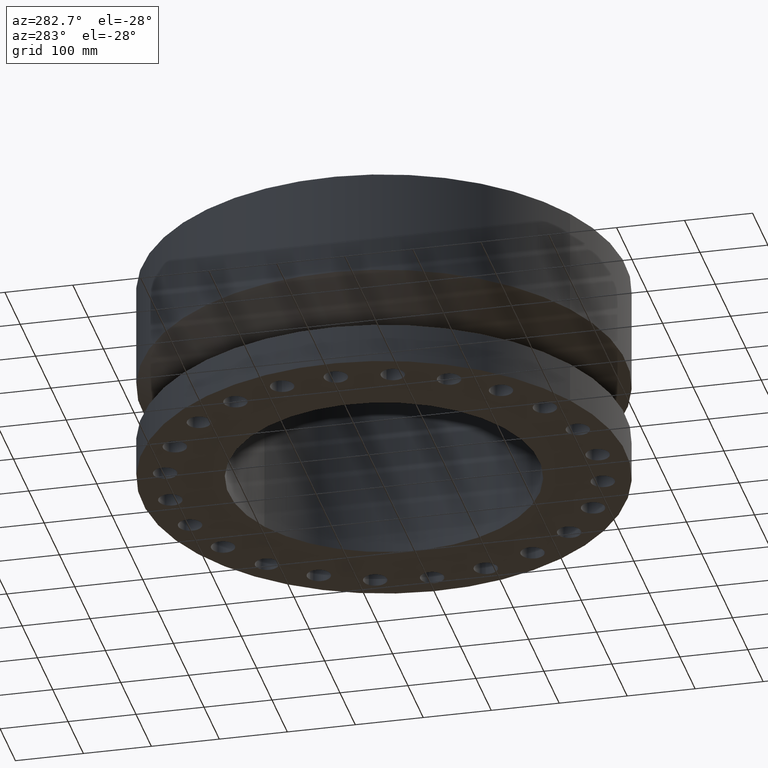
[diagram: clean part render]
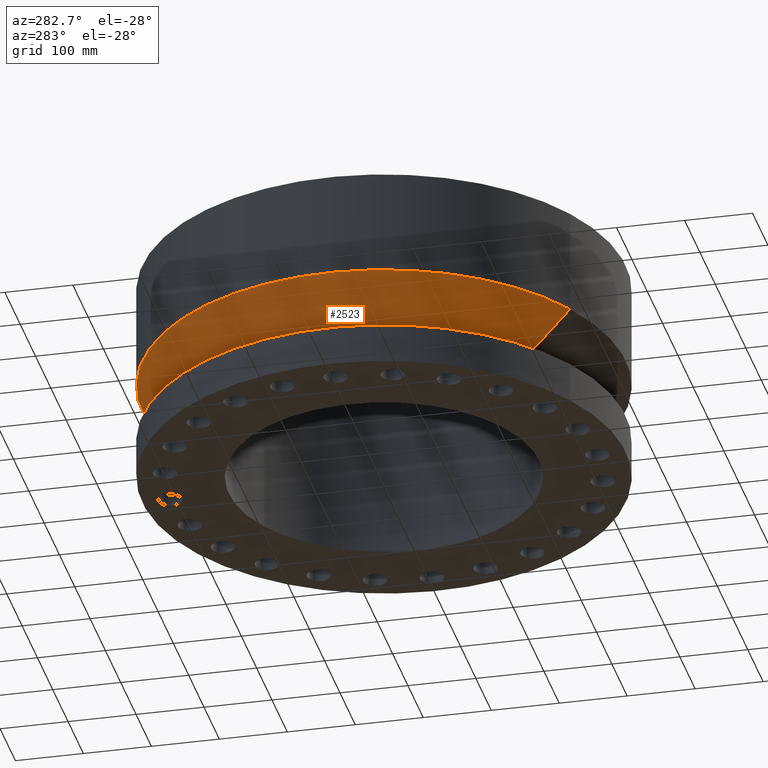
[diagram: same view with one face highlighted and labeled with its STEP entity id]
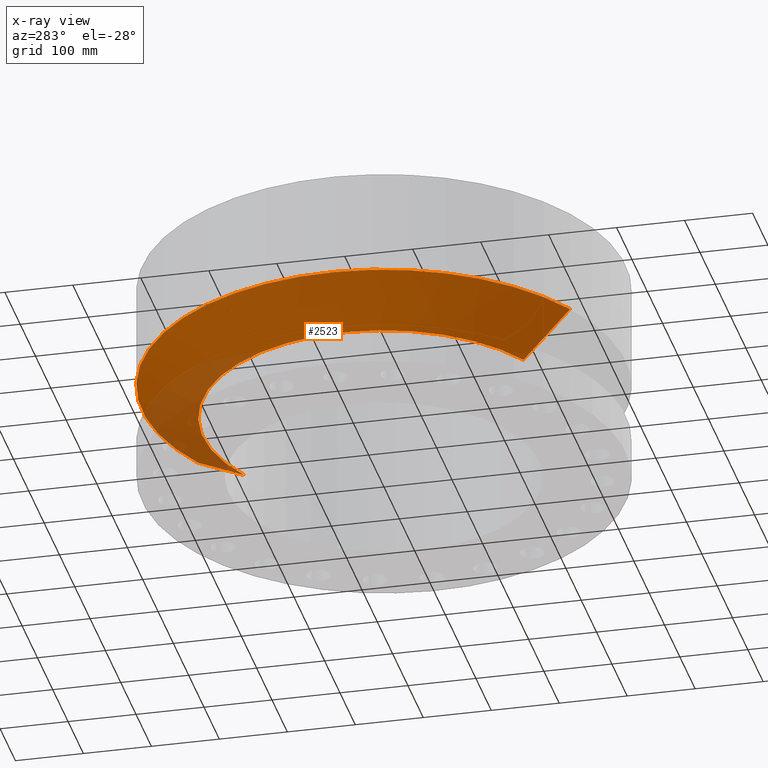
[diagram: x-ray of the same camera — body ghosted, the highlighted face saturated]
A machine part, auxiliary view. The second image highlights one B-rep face of the part: STEP entity #2523.
The next image is the same camera in x-ray: the body ghosted, the highlighted face saturated — about 16% of this face is hidden behind the body in this view.
In plain terms, the highlighted conical surface has half-angle 60 deg.
Its self-contained STEP definition (entity closure, byte-faithful):
#1958=AXIS2_PLACEMENT_3D('Circle Axis2P3D',#1956,#1957,$) ;
#2484=AXIS2_PLACEMENT_3D('Cone Axis2P3D',#2481,#2482,#2483) ;
#2514=AXIS2_PLACEMENT_3D('Circle Axis2P3D',#2512,#2513,$) ;
#1934=CARTESIAN_POINT('Vertex',(5.03396815536,9.21461689989,3.81750000002)) ;
#1941=CARTESIAN_POINT('Vertex',(-5.03396815536,-9.21461689989,3.81750000002)) ;
#1956=CARTESIAN_POINT('Axis2P3D Location',(0.,0.,3.81750000002)) ;
#2481=CARTESIAN_POINT('Axis2P3D Location',(0.,0.,3.81750000002)) ;
#2486=CARTESIAN_POINT('Line Origine',(5.87296284792,10.7503863832,4.8278629711)) ;
#2490=CARTESIAN_POINT('Vertex',(6.71195754049,12.2861558665,5.83822594219)) ;
#2497=CARTESIAN_POINT('Vertex',(-6.71195754049,-12.2861558665,5.83822594219)) ;
#2500=CARTESIAN_POINT('Line Origine',(-5.87296284792,-10.7503863832,4.8278629711)) ;
#2512=CARTESIAN_POINT('Axis2P3D Location',(0.,0.,5.83822594219)) ;
#1957=DIRECTION('Axis2P3D Direction',(0.,0.,-0.0393700787402)) ;
#2482=DIRECTION('Axis2P3D Direction',(-0.,-0.,0.0393700787402)) ;
#2483=DIRECTION('Axis2P3D XDirection',(0.0188750212049,0.0345504945626,0.)) ;
#2487=DIRECTION('Vector Direction',(0.0163462478604,0.0299216060045,0.0196850393701)) ;
#2501=DIRECTION('Vector Direction',(-0.0163462478604,-0.0299216060045,0.0196850393701)) ;
#2513=DIRECTION('Axis2P3D Direction',(-0.,0.,0.0393700787402)) ;
#2488=VECTOR('Line Direction',#2487,0.0393700787402) ;
#2502=VECTOR('Line Direction',#2501,0.0393700787402) ;
#2518=ORIENTED_EDGE('',*,*,#1960,.F.) ;
#2519=ORIENTED_EDGE('',*,*,#2504,.T.) ;
#2520=ORIENTED_EDGE('',*,*,#2516,.T.) ;
#2521=ORIENTED_EDGE('',*,*,#2492,.F.) ;
#2523=ADVANCED_FACE('PartBody',(#2522),#2485,.T.) ;
#1959=CIRCLE('generated circle',#1958,10.5) ;
#2515=CIRCLE('generated circle',#2514,14.0000000001) ;
#2485=CONICAL_SURFACE('Cone',#2484,10.5,1.0471975512) ;
#1960=EDGE_CURVE('',#1942,#1935,#1959,.T.) ;
#2492=EDGE_CURVE('',#1935,#2491,#2489,.T.) ;
#2504=EDGE_CURVE('',#1942,#2498,#2503,.T.) ;
#2516=EDGE_CURVE('',#2498,#2491,#2515,.F.) ;
#2517=EDGE_LOOP('',(#2518,#2519,#2520,#2521)) ;
#2522=FACE_OUTER_BOUND('',#2517,.T.) ;
#2489=LINE('Line',#2486,#2488) ;
#2503=LINE('Line',#2500,#2502) ;
#1935=VERTEX_POINT('',#1934) ;
#1942=VERTEX_POINT('',#1941) ;
#2491=VERTEX_POINT('',#2490) ;
#2498=VERTEX_POINT('',#2497) ;